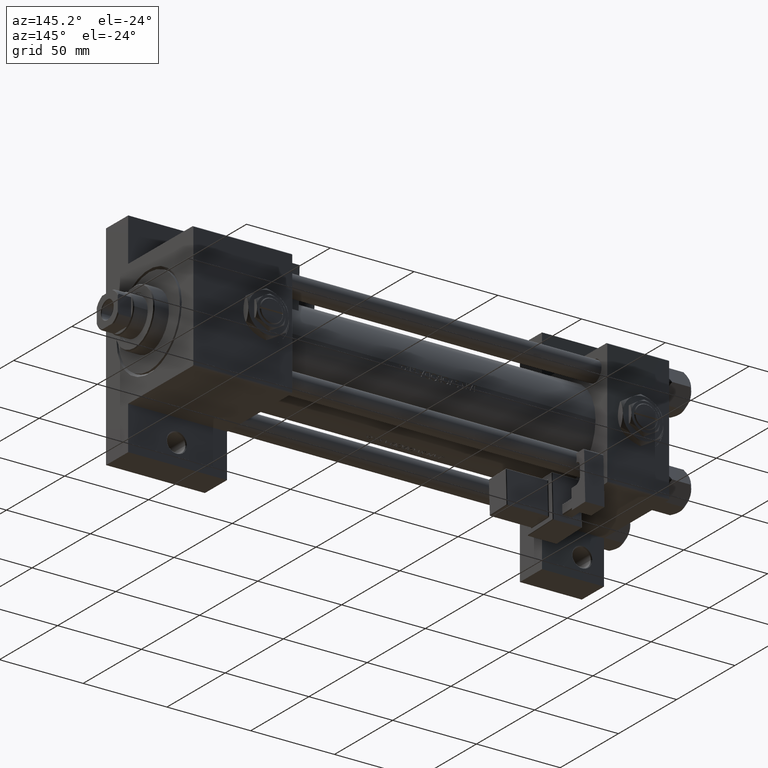
[diagram: clean part render]
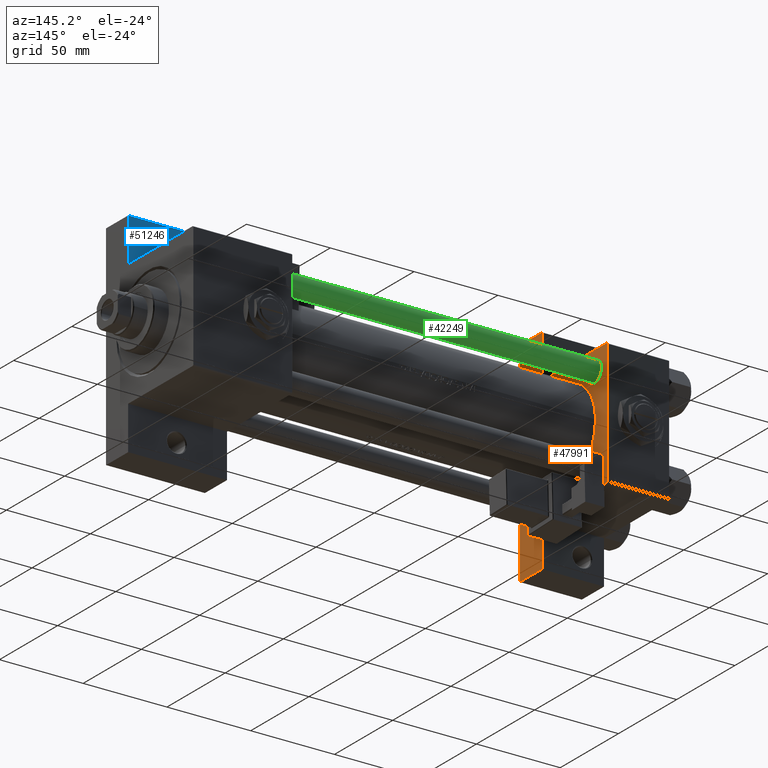
[diagram: same view with three faces highlighted in distinct colors, each labeled with its STEP entity id]
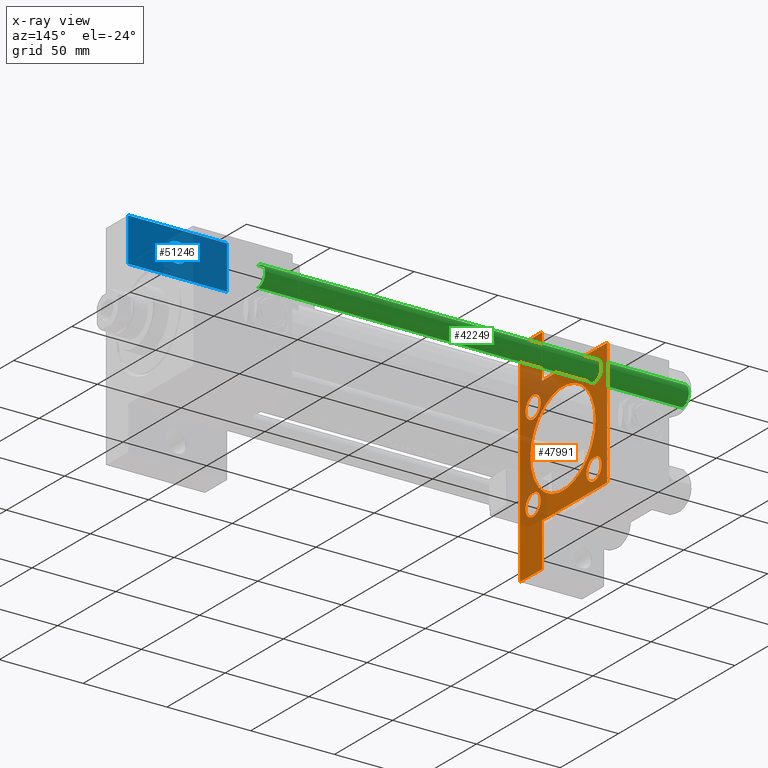
[diagram: x-ray of the same camera — body ghosted, the three highlighted faces saturated]
A machine part, auxiliary view with three faces highlighted in distinct colors.
The next image is the same camera in x-ray (body ghosted, the three faces saturated) — at least one of them is partly hidden behind the body in this view.
Their STEP definitions:

[orange] entity #47991 — the highlighted planar face has unit normal (-1, 0, -0).
#244 = CARTESIAN_POINT ( 'NONE',  ( 37.00000000000000000, 26.14999999999999858, -26.15000000000000213 ) ) ;
#727 = ORIENTED_EDGE ( 'NONE', *, *, #30309, .T. ) ;
#821 = DIRECTION ( 'NONE',  ( 0.000000000000000000, 0.000000000000000000, 1.000000000000000000 ) ) ;
#1392 = CARTESIAN_POINT ( 'NONE',  ( 37.00000000000000000, -26.14999999999999147, -32.64999999999995595 ) ) ;
#1828 = AXIS2_PLACEMENT_3D ( 'NONE', #38010, #34123, #3017 ) ;
#1941 = CARTESIAN_POINT ( 'NONE',  ( 37.00000000000000000, -63.50000000000000000, -18.50000000000000355 ) ) ;
#1958 = EDGE_LOOP ( 'NONE', ( #7075, #46667 ) ) ;
#1975 = VECTOR ( 'NONE', #39300, 1000.000000000000000 ) ;
#2368 = AXIS2_PLACEMENT_3D ( 'NONE', #46738, #50620, #18524 ) ;
#2758 = DIRECTION ( 'NONE',  ( 0.000000000000000000, -0.7071067811865474617, 0.7071067811865474617 ) ) ;
#2775 = VECTOR ( 'NONE', #31054, 1000.000000000000000 ) ;
#3017 = DIRECTION ( 'NONE',  ( 0.000000000000000000, 0.000000000000000000, 1.000000000000000000 ) ) ;
#3178 = VECTOR ( 'NONE', #2758, 1000.000000000000114 ) ;
#3392 = DIRECTION ( 'NONE',  ( -1.000000000000000000, 0.000000000000000000, -0.000000000000000000 ) ) ;
#3505 = CARTESIAN_POINT ( 'NONE',  ( 37.00000000000000000, -26.14999999999999147, 26.15000000000000924 ) ) ;
#3827 = AXIS2_PLACEMENT_3D ( 'NONE', #47437, #27760, #7817 ) ;
#3964 = DIRECTION ( 'NONE',  ( -0.000000000000000000, 1.000000000000000000, 0.000000000000000000 ) ) ;
#4381 = CARTESIAN_POINT ( 'NONE',  ( 37.00000000000000000, -37.50000000000000711, 36.99999999999999289 ) ) ;
#5153 = CIRCLE ( 'NONE', #1828, 6.499999999999946709 ) ;
#5518 = EDGE_LOOP ( 'NONE', ( #27884, #50537 ) ) ;
#6203 = LINE ( 'NONE', #9583, #30887 ) ;
#6261 = VERTEX_POINT ( 'NONE', #7336 ) ;
#6573 = VECTOR ( 'NONE', #28369, 1000.000000000000000 ) ;
#6646 = CARTESIAN_POINT ( 'NONE',  ( 37.00000000000000000, 36.99999999999999289, 37.50000000000000000 ) ) ;
#7075 = ORIENTED_EDGE ( 'NONE', *, *, #13846, .T. ) ;
#7336 = CARTESIAN_POINT ( 'NONE',  ( 37.00000000000000711, 0.000000000000000000, 27.50000000000000000 ) ) ;
#7481 = DIRECTION ( 'NONE',  ( 0.000000000000000000, 0.000000000000000000, 1.000000000000000000 ) ) ;
#7526 = EDGE_CURVE ( 'NONE', #11667, #29923, #32794, .T. ) ;
#7727 = EDGE_CURVE ( 'NONE', #42039, #42783, #39406, .T. ) ;
#7817 = DIRECTION ( 'NONE',  ( 0.000000000000000000, 0.000000000000000000, 1.000000000000000000 ) ) ;
#8051 = FACE_BOUND ( 'NONE', #13307, .T. ) ;
#8269 = DIRECTION ( 'NONE',  ( -1.000000000000000000, 0.000000000000000000, -0.000000000000000000 ) ) ;
#9186 = VERTEX_POINT ( 'NONE', #29377 ) ;
#9583 = CARTESIAN_POINT ( 'NONE',  ( 37.00000000000000000, -37.50000000000000711, 37.49999999999999289 ) ) ;
#9648 = ORIENTED_EDGE ( 'NONE', *, *, #16211, .F. ) ;
#9961 = ORIENTED_EDGE ( 'NONE', *, *, #51220, .F. ) ;
#10082 = AXIS2_PLACEMENT_3D ( 'NONE', #20199, #28218, #7481 ) ;
#10720 = CARTESIAN_POINT ( 'NONE',  ( 37.00000000000000000, -26.14999999999999147, 19.65000000000005542 ) ) ;
#10752 = LINE ( 'NONE', #26561, #31524 ) ;
#11589 = VERTEX_POINT ( 'NONE', #4381 ) ;
#11667 = VERTEX_POINT ( 'NONE', #10720 ) ;
#12197 = FACE_OUTER_BOUND ( 'NONE', #28463, .T. ) ;
#12347 = ORIENTED_EDGE ( 'NONE', *, *, #7526, .T. ) ;
#12372 = CARTESIAN_POINT ( 'NONE',  ( 37.00000000000000000, -26.14999999999999147, -26.15000000000000924 ) ) ;
#12484 = CIRCLE ( 'NONE', #35682, 28.00000000000000000 ) ;
#12659 = VECTOR ( 'NONE', #44305, 1000.000000000000000 ) ;
#12779 = ORIENTED_EDGE ( 'NONE', *, *, #46820, .F. ) ;
#12845 = VERTEX_POINT ( 'NONE', #6646 ) ;
#13301 = VERTEX_POINT ( 'NONE', #49841 ) ;
#13307 = EDGE_LOOP ( 'NONE', ( #40357, #22476 ) ) ;
#13549 = VERTEX_POINT ( 'NONE', #1392 ) ;
#13846 = EDGE_CURVE ( 'NONE', #21356, #9186, #50352, .T. ) ;
#14037 = ORIENTED_EDGE ( 'NONE', *, *, #39609, .F. ) ;
#14677 = CIRCLE ( 'NONE', #36243, 6.499999999999946709 ) ;
#14762 = DIRECTION ( 'NONE',  ( 0.000000000000000000, 0.000000000000000000, 1.000000000000000000 ) ) ;
#15279 = DIRECTION ( 'NONE',  ( 1.000000000000000000, -0.000000000000000000, 0.000000000000000000 ) ) ;
#16155 = CARTESIAN_POINT ( 'NONE',  ( 37.00000000000000000, -63.49999999999998579, -18.50000000000000355 ) ) ;
#16211 = EDGE_CURVE ( 'NONE', #48049, #34390, #20020, .T. ) ;
#16772 = DIRECTION ( 'NONE',  ( 0.000000000000000000, 0.000000000000000000, 1.000000000000000000 ) ) ;
#16824 = ORIENTED_EDGE ( 'NONE', *, *, #30566, .F. ) ;
#17076 = ORIENTED_EDGE ( 'NONE', *, *, #28907, .T. ) ;
#17253 = CIRCLE ( 'NONE', #47859, 6.499999999999953815 ) ;
#17429 = DIRECTION ( 'NONE',  ( 1.000000000000000000, -0.000000000000000000, 0.000000000000000000 ) ) ;
#18524 = DIRECTION ( 'NONE',  ( 0.000000000000000000, 0.000000000000000000, 1.000000000000000000 ) ) ;
#18715 = AXIS2_PLACEMENT_3D ( 'NONE', #244, #8269, #21201 ) ;
#19827 = CARTESIAN_POINT ( 'NONE',  ( 37.00000000000001421, 63.50000000000001421, 26.72167621838005047 ) ) ;
#20020 = LINE ( 'NONE', #25364, #22181 ) ;
#20058 = AXIS2_PLACEMENT_3D ( 'NONE', #35266, #3392, #31117 ) ;
#20199 = CARTESIAN_POINT ( 'NONE',  ( 37.00000000000000000, 26.14999999999999858, 26.15000000000000213 ) ) ;
#21201 = DIRECTION ( 'NONE',  ( 0.000000000000000000, 0.000000000000000000, 1.000000000000000000 ) ) ;
#21356 = VERTEX_POINT ( 'NONE', #48027 ) ;
#21661 = DIRECTION ( 'NONE',  ( -0.000000000000000000, -0.7071067811865474617, -0.7071067811865474617 ) ) ;
#21861 = EDGE_CURVE ( 'NONE', #41458, #6261, #12484, .T. ) ;
#22024 = CARTESIAN_POINT ( 'NONE',  ( 37.00000000000000711, 0.000000000000000000, -0.5000000000000004441 ) ) ;
#22181 = VECTOR ( 'NONE', #30018, 1000.000000000000000 ) ;
#22476 = ORIENTED_EDGE ( 'NONE', *, *, #24296, .T. ) ;
#22616 = ORIENTED_EDGE ( 'NONE', *, *, #44801, .T. ) ;
#22931 = LINE ( 'NONE', #46258, #3178 ) ;
#23071 = FACE_BOUND ( 'NONE', #1958, .T. ) ;
#23130 = CARTESIAN_POINT ( 'NONE',  ( 37.00000000000000000, 37.49999999999999289, 37.50000000000000000 ) ) ;
#24296 = EDGE_CURVE ( 'NONE', #34830, #13549, #5153, .T. ) ;
#24396 = CARTESIAN_POINT ( 'NONE',  ( 37.00000000000000000, 26.14999999999999858, 26.15000000000000213 ) ) ;
#24622 = LINE ( 'NONE', #23130, #12659 ) ;
#24871 = EDGE_CURVE ( 'NONE', #9186, #21356, #32447, .T. ) ;
#25339 = LINE ( 'NONE', #41151, #44898 ) ;
#25364 = CARTESIAN_POINT ( 'NONE',  ( 37.00000000000000000, 37.49999999999999289, -37.50000000000000000 ) ) ;
#26389 = VERTEX_POINT ( 'NONE', #37677 ) ;
#26561 = CARTESIAN_POINT ( 'NONE',  ( 37.00000000000000000, -37.50000000000000711, 36.99999999999999289 ) ) ;
#27005 = LINE ( 'NONE', #16155, #49754 ) ;
#27105 = LINE ( 'NONE', #31014, #1975 ) ;
#27220 = FACE_BOUND ( 'NONE', #48267, .T. ) ;
#27314 = CARTESIAN_POINT ( 'NONE',  ( 37.00000000000000000, -37.00000000000000711, 37.49999999999999289 ) ) ;
#27388 = ORIENTED_EDGE ( 'NONE', *, *, #7727, .T. ) ;
#27591 = LINE ( 'NONE', #19827, #6573 ) ;
#27760 = DIRECTION ( 'NONE',  ( -1.000000000000000000, 0.000000000000000000, -0.000000000000000000 ) ) ;
#27884 = ORIENTED_EDGE ( 'NONE', *, *, #40988, .F. ) ;
#28218 = DIRECTION ( 'NONE',  ( -1.000000000000000000, 0.000000000000000000, -0.000000000000000000 ) ) ;
#28369 = DIRECTION ( 'NONE',  ( 0.000000000000000000, -1.734723475976806848E-16, -1.000000000000000000 ) ) ;
#28463 = EDGE_LOOP ( 'NONE', ( #727, #22616, #37283, #12779, #17076, #9648, #14037, #9961, #16824, #33004 ) ) ;
#28479 = CARTESIAN_POINT ( 'NONE',  ( 37.00000000000000000, 26.14999999999999858, -32.64999999999994884 ) ) ;
#28907 = EDGE_CURVE ( 'NONE', #45812, #34390, #25339, .T. ) ;
#29099 = CARTESIAN_POINT ( 'NONE',  ( 37.00000000000000000, 26.14999999999999858, -19.65000000000005542 ) ) ;
#29130 = DIRECTION ( 'NONE',  ( -1.000000000000000000, 0.000000000000000000, -0.000000000000000000 ) ) ;
#29290 = DIRECTION ( 'NONE',  ( 0.000000000000000000, 9.251858538542971581E-17, -1.000000000000000000 ) ) ;
#29377 = CARTESIAN_POINT ( 'NONE',  ( 37.00000000000000000, 26.14999999999999858, 32.64999999999995595 ) ) ;
#29537 = CARTESIAN_POINT ( 'NONE',  ( 37.00000000000000711, 3.429011037612589276E-15, -28.50000000000000000 ) ) ;
#29671 = CIRCLE ( 'NONE', #35485, 28.00000000000000000 ) ;
#29923 = VERTEX_POINT ( 'NONE', #31304 ) ;
#30018 = DIRECTION ( 'NONE',  ( 0.000000000000000000, -1.000000000000000000, -9.251858538542972814E-17 ) ) ;
#30309 = EDGE_CURVE ( 'NONE', #12845, #37474, #24622, .T. ) ;
#30566 = EDGE_CURVE ( 'NONE', #35663, #13301, #50455, .T. ) ;
#30887 = VECTOR ( 'NONE', #29290, 1000.000000000000000 ) ;
#31014 = CARTESIAN_POINT ( 'NONE',  ( 37.00000000000001421, 63.50000000000001421, -18.50000000000000355 ) ) ;
#31054 = DIRECTION ( 'NONE',  ( 0.000000000000000000, 0.000000000000000000, -1.000000000000000000 ) ) ;
#31117 = DIRECTION ( 'NONE',  ( -0.000000000000000000, 0.000000000000000000, 1.000000000000000000 ) ) ;
#31304 = CARTESIAN_POINT ( 'NONE',  ( 37.00000000000000000, -26.14999999999999147, 32.64999999999996305 ) ) ;
#31524 = VECTOR ( 'NONE', #21661, 1000.000000000000114 ) ;
#32204 = AXIS2_PLACEMENT_3D ( 'NONE', #24396, #40973, #821 ) ;
#32447 = CIRCLE ( 'NONE', #10082, 6.499999999999953815 ) ;
#32794 = CIRCLE ( 'NONE', #3827, 6.499999999999953815 ) ;
#33004 = ORIENTED_EDGE ( 'NONE', *, *, #40479, .T. ) ;
#33237 = DIRECTION ( 'NONE',  ( 0.000000000000000000, 0.000000000000000000, 1.000000000000000000 ) ) ;
#34123 = DIRECTION ( 'NONE',  ( -1.000000000000000000, 0.000000000000000000, -0.000000000000000000 ) ) ;
#34390 = VERTEX_POINT ( 'NONE', #34654 ) ;
#34527 = EDGE_CURVE ( 'NONE', #13549, #34830, #14677, .T. ) ;
#34654 = CARTESIAN_POINT ( 'NONE',  ( 37.00000000000000000, -63.50000000000000000, -37.49999999999999289 ) ) ;
#34830 = VERTEX_POINT ( 'NONE', #46161 ) ;
#35061 = CARTESIAN_POINT ( 'NONE',  ( 37.00000000000000000, 37.49999999999999289, 37.00000000000000000 ) ) ;
#35266 = CARTESIAN_POINT ( 'NONE',  ( 37.00000000000000000, 0.000000000000000000, 0.000000000000000000 ) ) ;
#35485 = AXIS2_PLACEMENT_3D ( 'NONE', #36623, #17429, #33237 ) ;
#35491 = CIRCLE ( 'NONE', #2368, 6.499999999999946709 ) ;
#35663 = VERTEX_POINT ( 'NONE', #35061 ) ;
#35682 = AXIS2_PLACEMENT_3D ( 'NONE', #22024, #15279, #14762 ) ;
#36243 = AXIS2_PLACEMENT_3D ( 'NONE', #12372, #43977, #16772 ) ;
#36623 = CARTESIAN_POINT ( 'NONE',  ( 37.00000000000000711, 0.000000000000000000, -0.5000000000000004441 ) ) ;
#36821 = EDGE_CURVE ( 'NONE', #29923, #11667, #17253, .T. ) ;
#37264 = DIRECTION ( 'NONE',  ( 0.000000000000000000, -1.734723475976806848E-16, -1.000000000000000000 ) ) ;
#37283 = ORIENTED_EDGE ( 'NONE', *, *, #50092, .T. ) ;
#37474 = VERTEX_POINT ( 'NONE', #27314 ) ;
#37552 = EDGE_CURVE ( 'NONE', #42783, #42039, #35491, .T. ) ;
#37677 = CARTESIAN_POINT ( 'NONE',  ( 37.00000000000000000, -37.50000000000000000, -18.50000000000000355 ) ) ;
#38010 = CARTESIAN_POINT ( 'NONE',  ( 37.00000000000000000, -26.14999999999999147, -26.15000000000000924 ) ) ;
#38887 = PLANE ( 'NONE',  #20058 ) ;
#39300 = DIRECTION ( 'NONE',  ( 2.668805347656626678E-16, 1.000000000000000000, 0.000000000000000000 ) ) ;
#39406 = CIRCLE ( 'NONE', #18715, 6.499999999999946709 ) ;
#39609 = EDGE_CURVE ( 'NONE', #43878, #48049, #27591, .T. ) ;
#40357 = ORIENTED_EDGE ( 'NONE', *, *, #34527, .T. ) ;
#40479 = EDGE_CURVE ( 'NONE', #35663, #12845, #22931, .T. ) ;
#40973 = DIRECTION ( 'NONE',  ( -1.000000000000000000, 0.000000000000000000, -0.000000000000000000 ) ) ;
#40988 = EDGE_CURVE ( 'NONE', #6261, #41458, #29671, .T. ) ;
#41151 = CARTESIAN_POINT ( 'NONE',  ( 37.00000000000000000, -63.49999999999998579, 26.72167621838007889 ) ) ;
#41458 = VERTEX_POINT ( 'NONE', #29537 ) ;
#42039 = VERTEX_POINT ( 'NONE', #29099 ) ;
#42767 = FACE_BOUND ( 'NONE', #45451, .T. ) ;
#42783 = VERTEX_POINT ( 'NONE', #28479 ) ;
#43708 = ORIENTED_EDGE ( 'NONE', *, *, #37552, .T. ) ;
#43878 = VERTEX_POINT ( 'NONE', #44658 ) ;
#43977 = DIRECTION ( 'NONE',  ( -1.000000000000000000, 0.000000000000000000, -0.000000000000000000 ) ) ;
#44305 = DIRECTION ( 'NONE',  ( 0.000000000000000000, -1.000000000000000000, -9.251858538542971581E-17 ) ) ;
#44658 = CARTESIAN_POINT ( 'NONE',  ( 37.00000000000001421, 63.50000000000000000, -18.50000000000000355 ) ) ;
#44664 = DIRECTION ( 'NONE',  ( 0.000000000000000000, 0.000000000000000000, 1.000000000000000000 ) ) ;
#44801 = EDGE_CURVE ( 'NONE', #37474, #11589, #10752, .T. ) ;
#44898 = VECTOR ( 'NONE', #37264, 1000.000000000000000 ) ;
#45451 = EDGE_LOOP ( 'NONE', ( #12347, #48245 ) ) ;
#45812 = VERTEX_POINT ( 'NONE', #1941 ) ;
#46068 = CARTESIAN_POINT ( 'NONE',  ( 37.00000000000000000, 37.49999999999999289, 37.50000000000000000 ) ) ;
#46161 = CARTESIAN_POINT ( 'NONE',  ( 37.00000000000000000, -26.14999999999999147, -19.65000000000006253 ) ) ;
#46258 = CARTESIAN_POINT ( 'NONE',  ( 37.00000000000000000, 36.99999999999999289, 37.50000000000000000 ) ) ;
#46667 = ORIENTED_EDGE ( 'NONE', *, *, #24871, .T. ) ;
#46738 = CARTESIAN_POINT ( 'NONE',  ( 37.00000000000000000, 26.14999999999999858, -26.15000000000000213 ) ) ;
#46820 = EDGE_CURVE ( 'NONE', #45812, #26389, #27005, .T. ) ;
#47423 = FACE_BOUND ( 'NONE', #5518, .T. ) ;
#47437 = CARTESIAN_POINT ( 'NONE',  ( 37.00000000000000000, -26.14999999999999147, 26.15000000000000924 ) ) ;
#47859 = AXIS2_PLACEMENT_3D ( 'NONE', #3505, #29130, #44664 ) ;
#47991 = ADVANCED_FACE ( 'NONE', ( #8051, #27220, #42767, #23071, #47423, #12197 ), #38887, .F. ) ;
#48027 = CARTESIAN_POINT ( 'NONE',  ( 37.00000000000000000, 26.14999999999999858, 19.65000000000005187 ) ) ;
#48049 = VERTEX_POINT ( 'NONE', #48944 ) ;
#48245 = ORIENTED_EDGE ( 'NONE', *, *, #36821, .T. ) ;
#48267 = EDGE_LOOP ( 'NONE', ( #43708, #27388 ) ) ;
#48944 = CARTESIAN_POINT ( 'NONE',  ( 37.00000000000001421, 63.50000000000000000, -37.50000000000002132 ) ) ;
#49754 = VECTOR ( 'NONE', #3964, 1000.000000000000000 ) ;
#49841 = CARTESIAN_POINT ( 'NONE',  ( 37.00000000000000711, 37.50000000000000711, -18.50000000000000355 ) ) ;
#50092 = EDGE_CURVE ( 'NONE', #11589, #26389, #6203, .T. ) ;
#50352 = CIRCLE ( 'NONE', #32204, 6.499999999999953815 ) ;
#50455 = LINE ( 'NONE', #46068, #2775 ) ;
#50537 = ORIENTED_EDGE ( 'NONE', *, *, #21861, .F. ) ;
#50620 = DIRECTION ( 'NONE',  ( -1.000000000000000000, 0.000000000000000000, -0.000000000000000000 ) ) ;
#51220 = EDGE_CURVE ( 'NONE', #13301, #43878, #27105, .T. ) ;

[blue] entity #51246 — the highlighted planar face has unit normal (0, -1, 0).
#998 = ORIENTED_EDGE ( 'NONE', *, *, #13910, .F. ) ;
#2088 = LINE ( 'NONE', #45089, #42131 ) ;
#2217 = CARTESIAN_POINT ( 'NONE',  ( 255.0000000000000000, -51.00000000000000000, -18.50000000000000000 ) ) ;
#2398 = EDGE_CURVE ( 'NONE', #9290, #23715, #36117, .T. ) ;
#3805 = PLANE ( 'NONE',  #26762 ) ;
#3941 = CARTESIAN_POINT ( 'NONE',  ( 225.0000000000000000, -63.50000000000002842, -18.50000000000000000 ) ) ;
#4011 = ORIENTED_EDGE ( 'NONE', *, *, #22922, .F. ) ;
#4259 = VERTEX_POINT ( 'NONE', #38368 ) ;
#4897 = CIRCLE ( 'NONE', #6496, 5.999500000000212552 ) ;
#5140 = EDGE_LOOP ( 'NONE', ( #998, #4011, #12219, #39965 ) ) ;
#5232 = VECTOR ( 'NONE', #51108, 1000.000000000000000 ) ;
#6459 = DIRECTION ( 'NONE',  ( -0.000000000000000000, -1.000000000000000000, -0.000000000000000000 ) ) ;
#6496 = AXIS2_PLACEMENT_3D ( 'NONE', #25134, #49186, #44800 ) ;
#6920 = FACE_BOUND ( 'NONE', #26065, .T. ) ;
#7425 = FACE_OUTER_BOUND ( 'NONE', #5140, .T. ) ;
#7450 = CARTESIAN_POINT ( 'NONE',  ( 225.0000000000000000, -37.50000000000000000, -18.50000000000000000 ) ) ;
#7802 = ORIENTED_EDGE ( 'NONE', *, *, #18520, .T. ) ;
#9290 = VERTEX_POINT ( 'NONE', #3941 ) ;
#10288 = VERTEX_POINT ( 'NONE', #21554 ) ;
#11323 = LINE ( 'NONE', #7450, #15847 ) ;
#12173 = CARTESIAN_POINT ( 'NONE',  ( 260.9995000000002392, -51.00000000000000000, -18.50000000000000000 ) ) ;
#12219 = ORIENTED_EDGE ( 'NONE', *, *, #2398, .F. ) ;
#13910 = EDGE_CURVE ( 'NONE', #10288, #20184, #2088, .T. ) ;
#15725 = DIRECTION ( 'NONE',  ( -1.000000000000000000, 0.000000000000000000, -0.000000000000000000 ) ) ;
#15847 = VECTOR ( 'NONE', #49940, 1000.000000000000000 ) ;
#17264 = CARTESIAN_POINT ( 'NONE',  ( 225.0000000000000000, -63.50000000000002842, -18.50000000000000000 ) ) ;
#18165 = AXIS2_PLACEMENT_3D ( 'NONE', #2217, #22141, #37965 ) ;
#18520 = EDGE_CURVE ( 'NONE', #44119, #4259, #42974, .T. ) ;
#19609 = DIRECTION ( 'NONE',  ( 0.000000000000000000, 0.000000000000000000, -1.000000000000000000 ) ) ;
#20184 = VERTEX_POINT ( 'NONE', #28245 ) ;
#21554 = CARTESIAN_POINT ( 'NONE',  ( 284.0000000000000568, -37.50000000000000711, -18.50000000000000355 ) ) ;
#22141 = DIRECTION ( 'NONE',  ( 0.000000000000000000, 0.000000000000000000, -1.000000000000000000 ) ) ;
#22922 = EDGE_CURVE ( 'NONE', #23715, #10288, #11323, .T. ) ;
#23715 = VERTEX_POINT ( 'NONE', #46948 ) ;
#25134 = CARTESIAN_POINT ( 'NONE',  ( 255.0000000000000000, -51.00000000000000000, -18.50000000000000000 ) ) ;
#26065 = EDGE_LOOP ( 'NONE', ( #7802, #48833 ) ) ;
#26762 = AXIS2_PLACEMENT_3D ( 'NONE', #50415, #19609, #15725 ) ;
#28245 = CARTESIAN_POINT ( 'NONE',  ( 284.0000000000000568, -63.50000000000002842, -18.50000000000000000 ) ) ;
#33573 = LINE ( 'NONE', #17264, #44601 ) ;
#35597 = CARTESIAN_POINT ( 'NONE',  ( 225.0000000000000000, -63.50000000000002842, -18.50000000000000000 ) ) ;
#36117 = LINE ( 'NONE', #35597, #5232 ) ;
#37117 = EDGE_CURVE ( 'NONE', #4259, #44119, #4897, .T. ) ;
#37965 = DIRECTION ( 'NONE',  ( -1.000000000000000000, 0.000000000000000000, 0.000000000000000000 ) ) ;
#38368 = CARTESIAN_POINT ( 'NONE',  ( 249.0004999999997892, -51.00000000000000000, -18.50000000000000000 ) ) ;
#38489 = EDGE_CURVE ( 'NONE', #20184, #9290, #33573, .T. ) ;
#39965 = ORIENTED_EDGE ( 'NONE', *, *, #38489, .F. ) ;
#41611 = DIRECTION ( 'NONE',  ( -1.000000000000000000, -0.000000000000000000, -0.000000000000000000 ) ) ;
#42131 = VECTOR ( 'NONE', #6459, 1000.000000000000000 ) ;
#42974 = CIRCLE ( 'NONE', #18165, 5.999500000000212552 ) ;
#44119 = VERTEX_POINT ( 'NONE', #12173 ) ;
#44601 = VECTOR ( 'NONE', #41611, 1000.000000000000000 ) ;
#44800 = DIRECTION ( 'NONE',  ( -1.000000000000000000, 0.000000000000000000, 0.000000000000000000 ) ) ;
#45089 = CARTESIAN_POINT ( 'NONE',  ( 284.0000000000000568, -63.50000000000002842, -18.50000000000000000 ) ) ;
#46948 = CARTESIAN_POINT ( 'NONE',  ( 225.0000000000000000, -37.50000000000000000, -18.50000000000000000 ) ) ;
#48833 = ORIENTED_EDGE ( 'NONE', *, *, #37117, .T. ) ;
#49186 = DIRECTION ( 'NONE',  ( 0.000000000000000000, 0.000000000000000000, -1.000000000000000000 ) ) ;
#49940 = DIRECTION ( 'NONE',  ( 1.000000000000000000, -1.176083712526648456E-16, 0.000000000000000000 ) ) ;
#50415 = CARTESIAN_POINT ( 'NONE',  ( 0.000000000000000000, 0.000000000000000000, -18.50000000000000000 ) ) ;
#51108 = DIRECTION ( 'NONE',  ( 0.000000000000000000, 1.000000000000000000, 0.000000000000000000 ) ) ;
#51246 = ADVANCED_FACE ( 'NONE', ( #6920, #7425 ), #3805, .F. ) ;

[green] entity #42249 — the highlighted cylindrical surface (edge-blend (fillet) strip) has radius 6 mm, axis along (-1, -0, -0).
#147 = ORIENTED_EDGE ( 'NONE', *, *, #4217, .T. ) ;
#4217 = EDGE_CURVE ( 'NONE', #5511, #24775, #39083, .T. ) ;
#5175 = EDGE_CURVE ( 'NONE', #9521, #14074, #29230, .T. ) ;
#5511 = VERTEX_POINT ( 'NONE', #21988 ) ;
#7387 = AXIS2_PLACEMENT_3D ( 'NONE', #34507, #46403, #46147 ) ;
#7786 = DIRECTION ( 'NONE',  ( 1.000000000000000000, 0.000000000000000000, 0.000000000000000000 ) ) ;
#8082 = LINE ( 'NONE', #19493, #33051 ) ;
#8815 = ORIENTED_EDGE ( 'NONE', *, *, #14611, .F. ) ;
#9508 = DIRECTION ( 'NONE',  ( -0.000000000000000000, -0.000000000000000000, -1.000000000000000000 ) ) ;
#9521 = VERTEX_POINT ( 'NONE', #40351 ) ;
#10133 = DIRECTION ( 'NONE',  ( -0.000000000000000000, -0.000000000000000000, 1.000000000000000000 ) ) ;
#11650 = DIRECTION ( 'NONE',  ( 0.000000000000000000, 0.000000000000000000, -1.000000000000000000 ) ) ;
#14074 = VERTEX_POINT ( 'NONE', #46342 ) ;
#14558 = FACE_OUTER_BOUND ( 'NONE', #30533, .T. ) ;
#14611 = EDGE_CURVE ( 'NONE', #5511, #14074, #8082, .T. ) ;
#17575 = AXIS2_PLACEMENT_3D ( 'NONE', #19440, #11650, #7786 ) ;
#17676 = CARTESIAN_POINT ( 'NONE',  ( 0.000000000000000000, 0.000000000000000000, 0.5000000000000004441 ) ) ;
#19440 = CARTESIAN_POINT ( 'NONE',  ( 0.000000000000000000, 0.000000000000000000, 253.5000000000000568 ) ) ;
#19493 = CARTESIAN_POINT ( 'NONE',  ( -6.000000000000000888, 0.000000000000000000, 254.0000000000000000 ) ) ;
#21988 = CARTESIAN_POINT ( 'NONE',  ( -6.000000000000000888, 0.000000000000000000, 253.5000000000000568 ) ) ;
#22551 = DIRECTION ( 'NONE',  ( 1.000000000000000000, 0.000000000000000000, 0.000000000000000000 ) ) ;
#23408 = VECTOR ( 'NONE', #9508, 1000.000000000000000 ) ;
#24775 = VERTEX_POINT ( 'NONE', #32988 ) ;
#26732 = AXIS2_PLACEMENT_3D ( 'NONE', #17676, #10133, #22551 ) ;
#26881 = EDGE_CURVE ( 'NONE', #24775, #9521, #44740, .T. ) ;
#29230 = CIRCLE ( 'NONE', #26732, 6.000000000000000888 ) ;
#30533 = EDGE_LOOP ( 'NONE', ( #147, #30743, #50231, #8815 ) ) ;
#30743 = ORIENTED_EDGE ( 'NONE', *, *, #26881, .T. ) ;
#32988 = CARTESIAN_POINT ( 'NONE',  ( 6.000000000000000888, 7.347880794884120722E-16, 253.5000000000000568 ) ) ;
#33051 = VECTOR ( 'NONE', #51080, 1000.000000000000000 ) ;
#34507 = CARTESIAN_POINT ( 'NONE',  ( 0.000000000000000000, 0.000000000000000000, 254.0000000000000000 ) ) ;
#39083 = CIRCLE ( 'NONE', #17575, 6.000000000000000888 ) ;
#40351 = CARTESIAN_POINT ( 'NONE',  ( 6.000000000000000888, 7.347880794884120722E-16, 0.5000000000000004441 ) ) ;
#40887 = CARTESIAN_POINT ( 'NONE',  ( 6.000000000000000888, 7.347880794884120722E-16, 254.0000000000000000 ) ) ;
#42249 = ADVANCED_FACE ( 'NONE', ( #14558 ), #49524, .T. ) ;
#44740 = LINE ( 'NONE', #40887, #23408 ) ;
#46147 = DIRECTION ( 'NONE',  ( -1.000000000000000000, 0.000000000000000000, 0.000000000000000000 ) ) ;
#46342 = CARTESIAN_POINT ( 'NONE',  ( -6.000000000000000888, 0.000000000000000000, 0.5000000000000004441 ) ) ;
#46403 = DIRECTION ( 'NONE',  ( -0.000000000000000000, -0.000000000000000000, -1.000000000000000000 ) ) ;
#49524 = CYLINDRICAL_SURFACE ( 'NONE', #7387, 6.000000000000000888 ) ;
#50231 = ORIENTED_EDGE ( 'NONE', *, *, #5175, .T. ) ;
#51080 = DIRECTION ( 'NONE',  ( -0.000000000000000000, -0.000000000000000000, -1.000000000000000000 ) ) ;